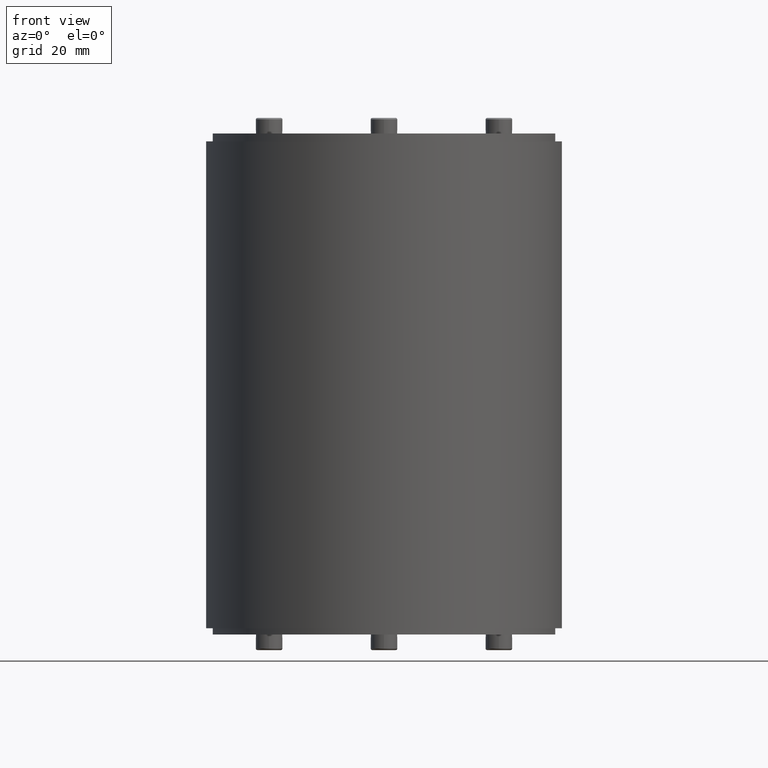
[diagram: clean part render]
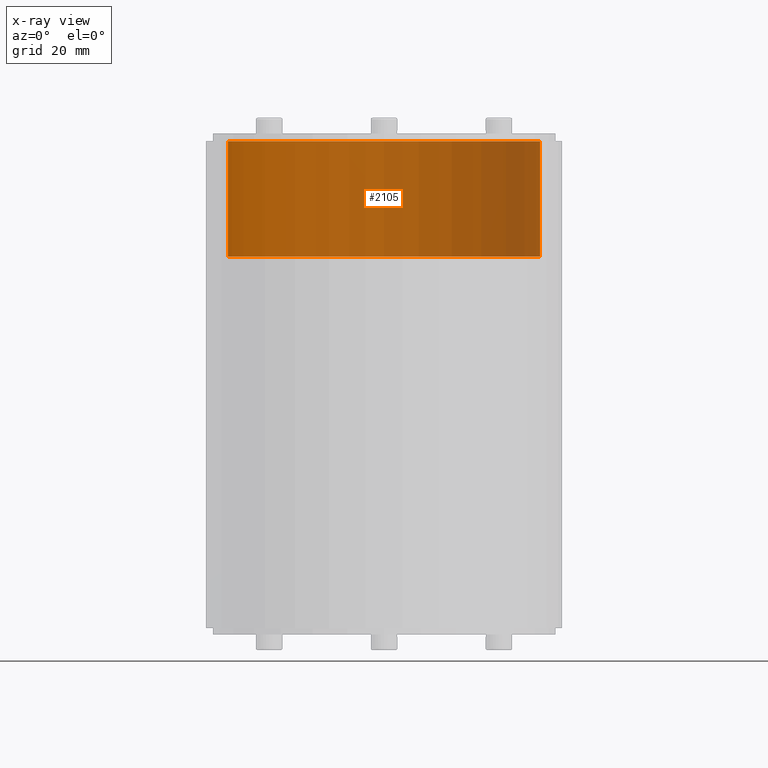
[diagram: x-ray — body ghosted, one internal face saturated and labeled with its STEP entity id]
A machine part, front view, then the same camera in x-ray: the body is ghosted and one INTERNAL B-rep face — a face not visible from any outside direction — is saturated and labeled: STEP entity #2105.
In plain terms, the highlighted cylindrical surface (partial cylindrical patch) has radius 50.0025 mm, axis along (0, 0, 1).
Its self-contained STEP definition (entity closure, byte-faithful):
#2047=CARTESIAN_POINT('',(-50.002499937502385,-25.001249968750514,18.0));
#2048=VERTEX_POINT('',#2047);
#2055=CARTESIAN_POINT('',(-50.002499937502385,-25.001249968750514,-19.0));
#2056=VERTEX_POINT('',#2055);
#2057=CARTESIAN_POINT('',(-50.002499937502385,-25.001249968750514,-19.0));
#2058=DIRECTION('',(0.0,0.0,1.0));
#2059=VECTOR('',#2058,37.0);
#2060=LINE('',#2057,#2059);
#2061=EDGE_CURVE('',#2056,#2048,#2060,.T.);
#2073=CARTESIAN_POINT('',(0.0,-25.001249968751978,-19.0));
#2074=DIRECTION('',(0.0,0.0,1.0));
#2075=DIRECTION('',(1.0,0.0,0.0));
#2076=AXIS2_PLACEMENT_3D('',#2073,#2074,#2075);
#2077=CYLINDRICAL_SURFACE('',#2076,50.002499937502385);
#2078=CARTESIAN_POINT('',(50.002499937502385,-25.001249968750500,18.0));
#2079=VERTEX_POINT('',#2078);
#2080=CARTESIAN_POINT('',(0.0,-25.001249968751978,18.0));
#2081=DIRECTION('',(0.0,0.0,-1.0));
#2082=DIRECTION('',(1.0,0.0,0.0));
#2083=AXIS2_PLACEMENT_3D('',#2080,#2081,#2082);
#2084=CIRCLE('',#2083,50.002499937502385);
#2085=EDGE_CURVE('',#2048,#2079,#2084,.T.);
#2086=ORIENTED_EDGE('',*,*,#2085,.T.);
#2087=CARTESIAN_POINT('',(50.002499937502385,-25.001249968750500,-19.0));
#2088=VERTEX_POINT('',#2087);
#2089=CARTESIAN_POINT('',(50.002499937502385,-25.001249968750500,-19.0));
#2090=DIRECTION('',(0.0,0.0,1.0));
#2091=VECTOR('',#2090,37.0);
#2092=LINE('',#2089,#2091);
#2093=EDGE_CURVE('',#2088,#2079,#2092,.T.);
#2094=ORIENTED_EDGE('',*,*,#2093,.F.);
#2095=CARTESIAN_POINT('',(0.0,-25.001249968751978,-19.0));
#2096=DIRECTION('',(0.0,0.0,1.0));
#2097=DIRECTION('',(1.0,0.0,0.0));
#2098=AXIS2_PLACEMENT_3D('',#2095,#2096,#2097);
#2099=CIRCLE('',#2098,50.002499937502385);
#2100=EDGE_CURVE('',#2088,#2056,#2099,.T.);
#2101=ORIENTED_EDGE('',*,*,#2100,.T.);
#2102=ORIENTED_EDGE('',*,*,#2061,.T.);
#2103=EDGE_LOOP('',(#2086,#2094,#2101,#2102));
#2104=FACE_OUTER_BOUND('',#2103,.F.);
#2105=ADVANCED_FACE('',(#2104),#2077,.F.);